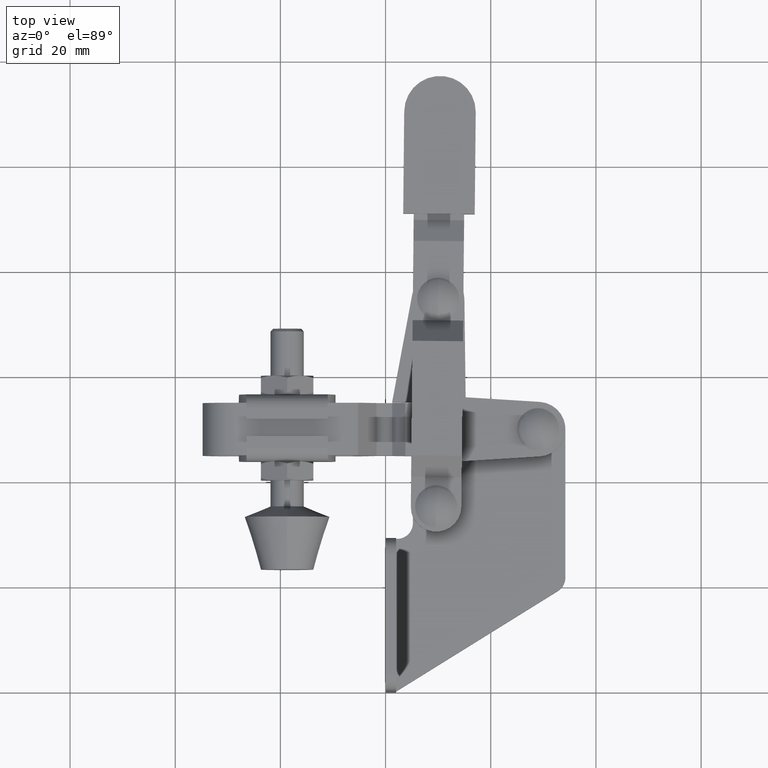
[diagram: clean part render]
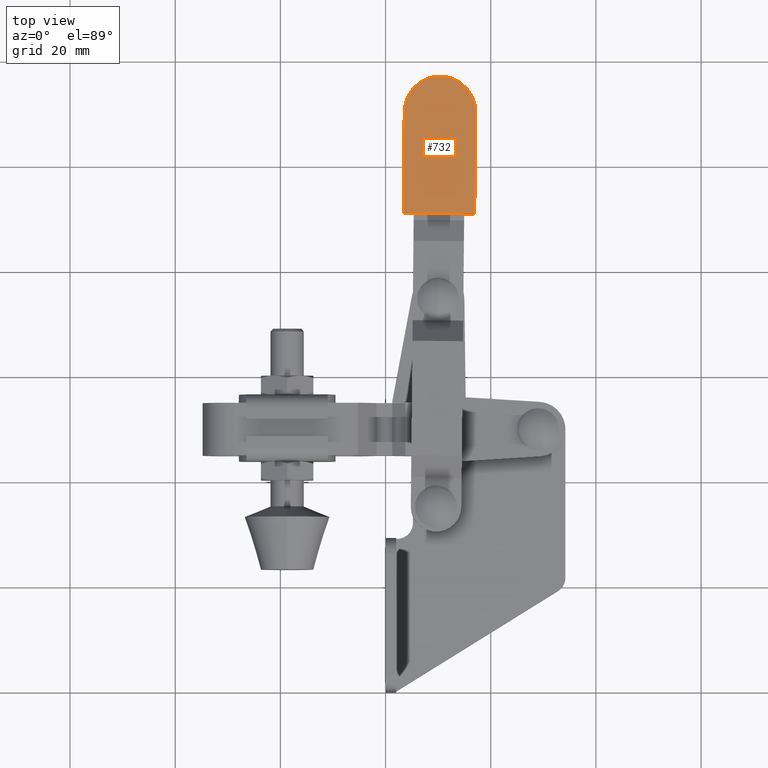
[diagram: same view with one face highlighted and labeled with its STEP entity id]
A machine part, top view. The second image highlights one B-rep face of the part: STEP entity #732.
In plain terms, the highlighted planar face has unit normal (-0, -0, 1).
Its self-contained STEP definition (entity closure, byte-faithful):
#43 = PLANE ( 'NONE',  #1043 ) ;
#343 = CARTESIAN_POINT ( 'NONE',  ( 10.34253158054225000, 110.2263291170209100, 2.999999999999980000 ) ) ;
#732 = ADVANCED_FACE ( 'NONE', ( #4180 ), #43, .T. ) ;
#887 = VERTEX_POINT ( 'NONE', #3110 ) ;
#978 = LINE ( 'NONE', #9806, #4931 ) ;
#1043 = AXIS2_PLACEMENT_3D ( 'NONE', #343, #9090, #9112 ) ;
#1235 = VECTOR ( 'NONE', #9816, 1000.000000000000100 ) ;
#1295 = EDGE_LOOP ( 'NONE', ( #3275, #7755, #1429, #1928 ) ) ;
#1429 = ORIENTED_EDGE ( 'NONE', *, *, #2856, .T. ) ;
#1437 = DIRECTION ( 'NONE',  ( -0.009887238089783870900, -0.9999511200668539400, -2.332067129803489400E-016 ) ) ;
#1620 = EDGE_CURVE ( 'NONE', #2717, #887, #5122, .T. ) ;
#1874 = CARTESIAN_POINT ( 'NONE',  ( 16.95051895997032800, 90.77341245750675100, 2.999999999999977400 ) ) ;
#1928 = ORIENTED_EDGE ( 'NONE', *, *, #8487, .T. ) ;
#2290 = CARTESIAN_POINT ( 'NONE',  ( 17.14219919699693800, 110.1590958980103800, 2.999999999999981800 ) ) ;
#2717 = VERTEX_POINT ( 'NONE', #2290 ) ;
#2856 = EDGE_CURVE ( 'NONE', #8819, #8360, #4535, .T. ) ;
#3110 = CARTESIAN_POINT ( 'NONE',  ( 3.542863964087561900, 110.2935623360314400, 2.999999999999978200 ) ) ;
#3275 = ORIENTED_EDGE ( 'NONE', *, *, #1620, .T. ) ;
#4180 = FACE_OUTER_BOUND ( 'NONE', #1295, .T. ) ;
#4535 = LINE ( 'NONE', #1874, #4924 ) ;
#4924 = VECTOR ( 'NONE', #5815, 1000.000000000000100 ) ;
#4931 = VECTOR ( 'NONE', #1437, 1000.000000000000200 ) ;
#5122 = CIRCLE ( 'NONE', #5168, 6.800000000000081500 ) ;
#5168 = AXIS2_PLACEMENT_3D ( 'NONE', #9118, #9351, #9413 ) ;
#5815 = DIRECTION ( 'NONE',  ( 0.9999511200668539400, -0.009887238089784125900, 2.593342070832123400E-016 ) ) ;
#7581 = LINE ( 'NONE', #9785, #1235 ) ;
#7755 = ORIENTED_EDGE ( 'NONE', *, *, #8566, .T. ) ;
#8265 = CARTESIAN_POINT ( 'NONE',  ( 3.351183727060950400, 90.90787889552781600, 2.999999999999974200 ) ) ;
#8360 = VERTEX_POINT ( 'NONE', #8618 ) ;
#8487 = EDGE_CURVE ( 'NONE', #8360, #2717, #7581, .T. ) ;
#8566 = EDGE_CURVE ( 'NONE', #887, #8819, #978, .T. ) ;
#8618 = CARTESIAN_POINT ( 'NONE',  ( 16.95051895997032800, 90.77341245750675100, 2.999999999999977400 ) ) ;
#8819 = VERTEX_POINT ( 'NONE', #8265 ) ;
#9090 = DIRECTION ( 'NONE',  ( -2.616273011398803100E-016, -2.306312148015523200E-016, 1.000000000000000000 ) ) ;
#9112 = DIRECTION ( 'NONE',  ( -0.9999511200668539400, 0.009887238089783870900, -2.593342070832123900E-016 ) ) ;
#9118 = CARTESIAN_POINT ( 'NONE',  ( 10.34253158054225000, 110.2263291170209100, 2.999999999999980000 ) ) ;
#9351 = DIRECTION ( 'NONE',  ( -2.616273011398803600E-016, -2.306312148015523200E-016, 1.000000000000000000 ) ) ;
#9413 = DIRECTION ( 'NONE',  ( -0.9999511200668540500, 0.009887238089783971500, -2.551063935259979900E-016 ) ) ;
#9785 = CARTESIAN_POINT ( 'NONE',  ( 16.95051895997032800, 90.77341245750675100, 2.999999999999977400 ) ) ;
#9806 = CARTESIAN_POINT ( 'NONE',  ( 3.542863964087561900, 110.2935623360314400, 2.999999999999978200 ) ) ;
#9816 = DIRECTION ( 'NONE',  ( 0.009887238089783870900, 0.9999511200668539400, 2.332067129803489400E-016 ) ) ;